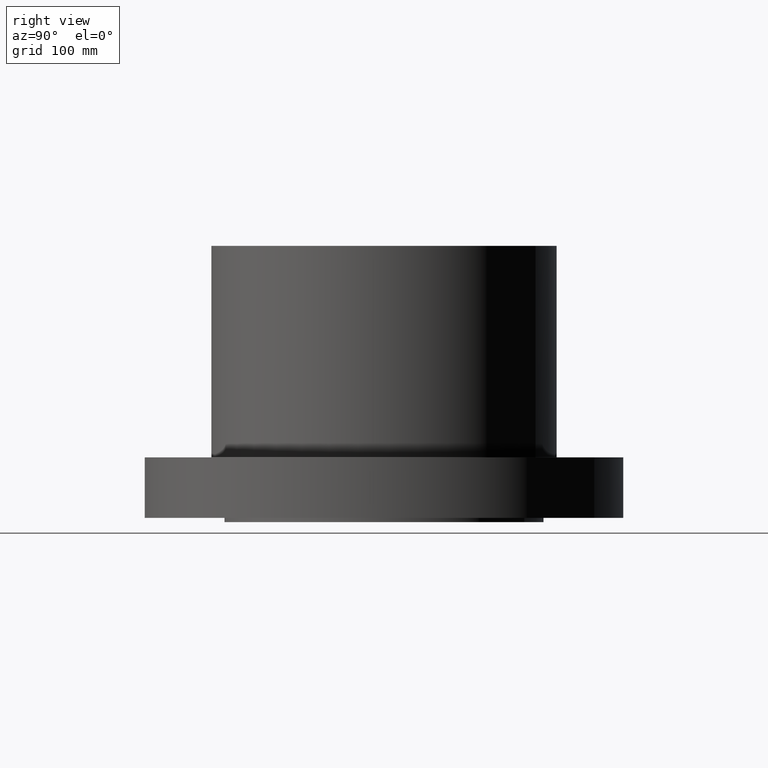
[diagram: clean part render]
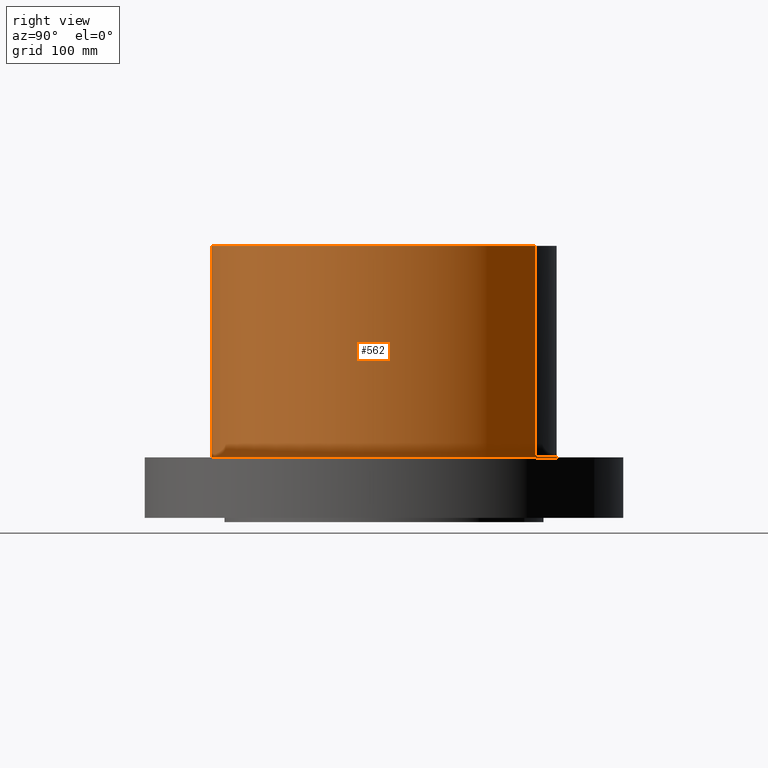
[diagram: same view with one face highlighted and labeled with its STEP entity id]
A machine part, right view. The second image highlights one B-rep face of the part: STEP entity #562.
In plain terms, the highlighted cylindrical surface (partial cylindrical patch) has radius 254 mm, axis along (0, 0, -1).
Its self-contained STEP definition (entity closure, byte-faithful):
#526=AXIS2_PLACEMENT_3D('Cylinder Axis2P3D',#523,#524,#525) ;
#530=AXIS2_PLACEMENT_3D('Circle Axis2P3D',#528,#529,$) ;
#546=AXIS2_PLACEMENT_3D('Circle Axis2P3D',#544,#545,$) ;
#523=CARTESIAN_POINT('Axis2P3D Location',(0.,0.,7.75000000003)) ;
#528=CARTESIAN_POINT('Axis2P3D Location',(0.,0.,3.50000000001)) ;
#532=CARTESIAN_POINT('Vertex',(4.79425538606,8.77582561894,3.50000000001)) ;
#534=CARTESIAN_POINT('Vertex',(-4.79425538606,-8.77582561894,3.50000000001)) ;
#537=CARTESIAN_POINT('Line Origine',(4.79425538606,8.77582561894,9.62500000004)) ;
#541=CARTESIAN_POINT('Vertex',(4.79425538606,8.77582561894,15.7500000001)) ;
#544=CARTESIAN_POINT('Axis2P3D Location',(0.,0.,15.7500000001)) ;
#548=CARTESIAN_POINT('Vertex',(-4.79425538606,-8.77582561894,15.7500000001)) ;
#551=CARTESIAN_POINT('Line Origine',(-4.79425538606,-8.77582561894,9.62500000004)) ;
#524=DIRECTION('Axis2P3D Direction',(0.,0.,-0.0393700787402)) ;
#525=DIRECTION('Axis2P3D XDirection',(-0.0188750212049,-0.0345504945626,0.)) ;
#529=DIRECTION('Axis2P3D Direction',(0.,0.,-0.0393700787402)) ;
#538=DIRECTION('Vector Direction',(0.,0.,-0.0393700787402)) ;
#545=DIRECTION('Axis2P3D Direction',(0.,0.,-0.0393700787402)) ;
#552=DIRECTION('Vector Direction',(0.,0.,-0.0393700787402)) ;
#539=VECTOR('Line Direction',#538,0.0393700787402) ;
#553=VECTOR('Line Direction',#552,0.0393700787402) ;
#557=ORIENTED_EDGE('',*,*,#536,.F.) ;
#558=ORIENTED_EDGE('',*,*,#543,.T.) ;
#559=ORIENTED_EDGE('',*,*,#550,.T.) ;
#560=ORIENTED_EDGE('',*,*,#555,.F.) ;
#562=ADVANCED_FACE('PartBody',(#561),#527,.T.) ;
#531=CIRCLE('generated circle',#530,10.) ;
#547=CIRCLE('generated circle',#546,10.) ;
#527=CYLINDRICAL_SURFACE('generated cylinder',#526,10.) ;
#536=EDGE_CURVE('',#533,#535,#531,.T.) ;
#543=EDGE_CURVE('',#533,#542,#540,.F.) ;
#550=EDGE_CURVE('',#542,#549,#547,.T.) ;
#555=EDGE_CURVE('',#535,#549,#554,.F.) ;
#556=EDGE_LOOP('',(#557,#558,#559,#560)) ;
#561=FACE_OUTER_BOUND('',#556,.T.) ;
#540=LINE('Line',#537,#539) ;
#554=LINE('Line',#551,#553) ;
#533=VERTEX_POINT('',#532) ;
#535=VERTEX_POINT('',#534) ;
#542=VERTEX_POINT('',#541) ;
#549=VERTEX_POINT('',#548) ;